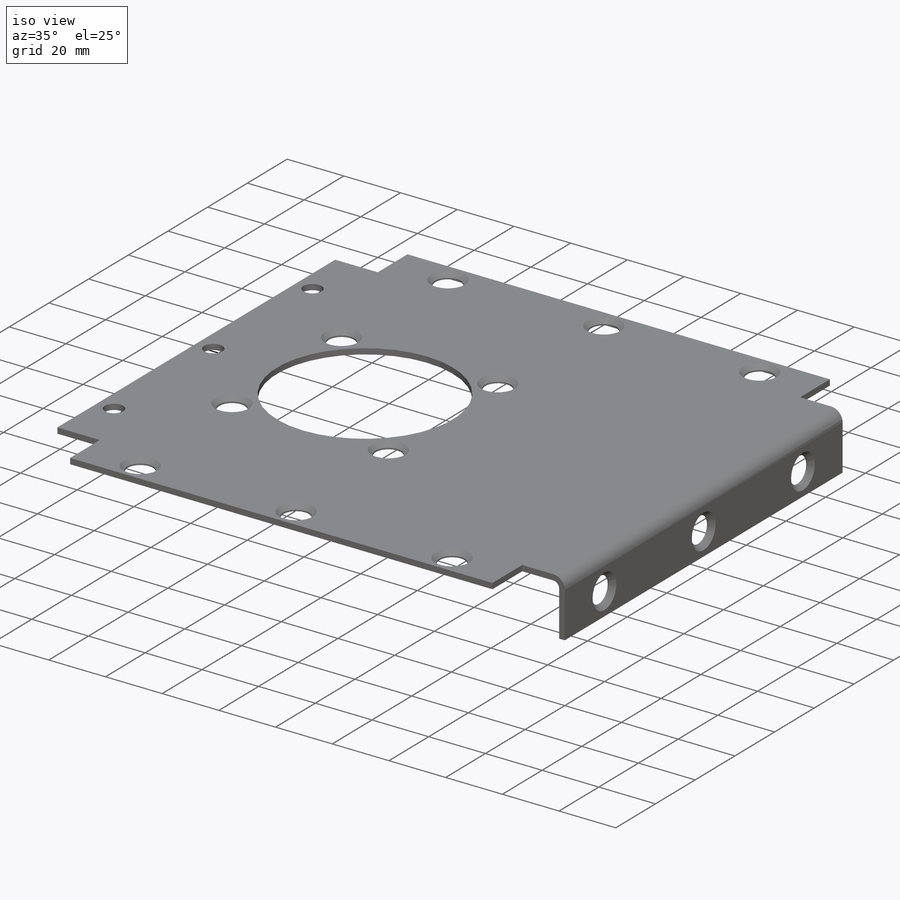
[diagram: iso view]
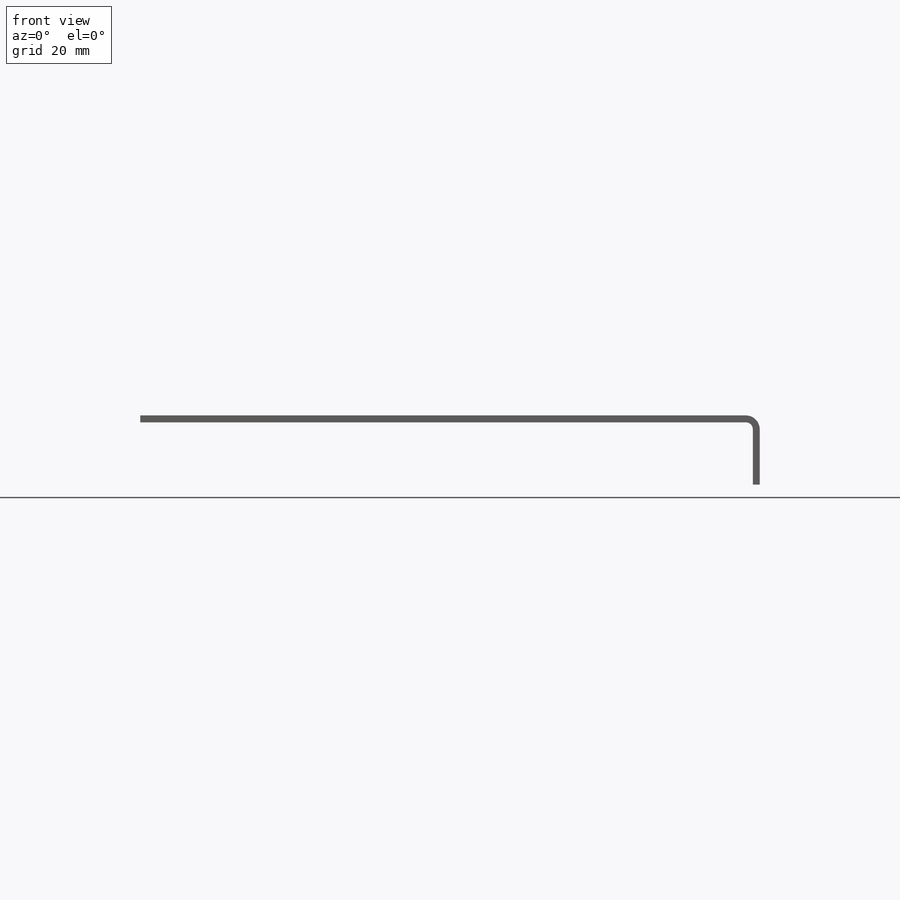
[diagram: front view]
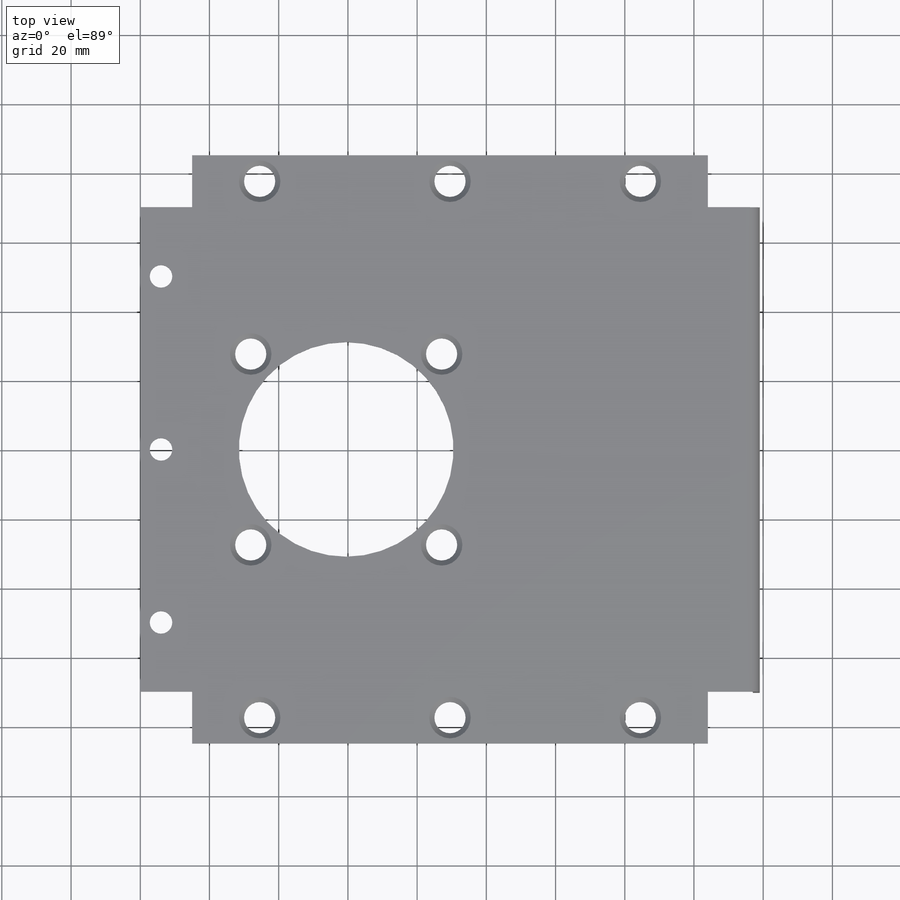
[diagram: top view]
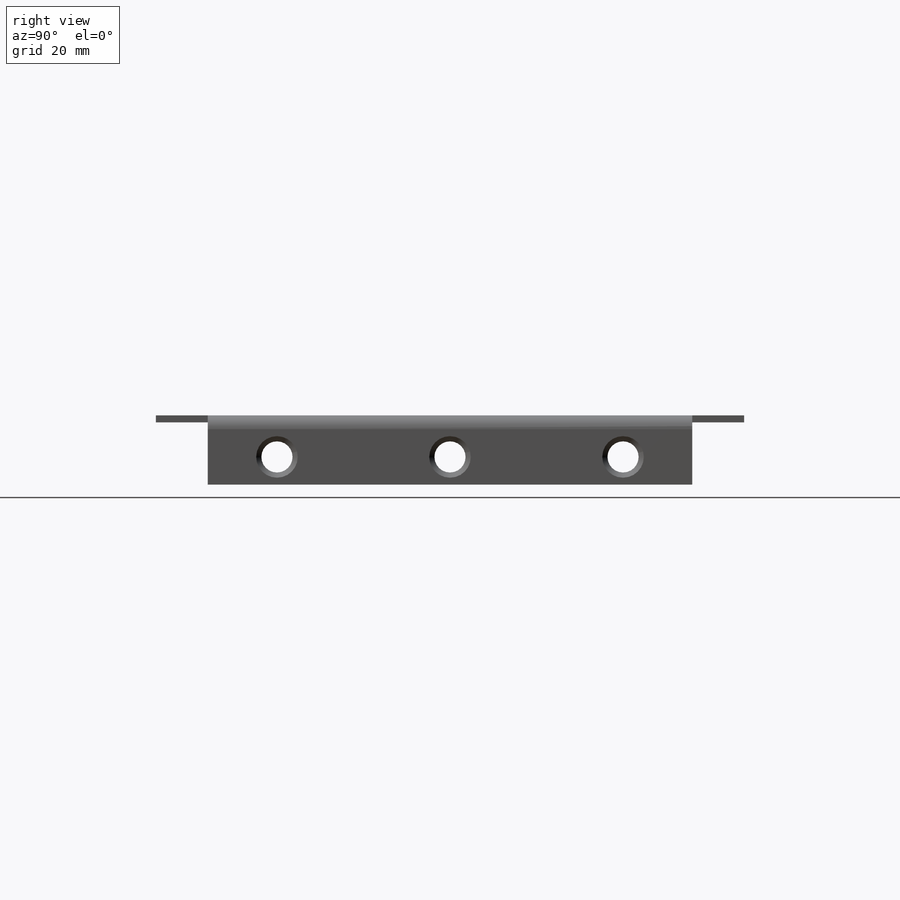
[diagram: right view]
SOLIDWORKS PART (.sldprt)
format: sldprt  version: not decoded by parser v0  size: 282,112 bytes
history: native  units: mm
features: sketch x9, plane x3, sheet_metal_op x2, extrude x2, material x1, cut_extrude x1, hole x1 + 6 further entries (+9 scaffold rows collapsed)
feature tree (34):
  scaffold x9  (default folders/planes/origin — collapsed)
  material  "Ст 3 ГОСТ 380-2005"
  plane  "Спереди"
  plane  "Сверху"
  plane  "Слева"
  "Начало координат"
  "PTricksFreeParameters"
  "PTricksEqu"
  "PTricksFreeParameters"
  sketch  "Эскиз1"  dims[c1.D1=~20.918541mm c2.D1=20.0mm c2.D2=179.0mm]
  sheet_metal_op  "Листовой металл1"  Толщина=2mm
  sheet_metal_op  "Базовая кромка1"
  sketch  "Эскиз3"  dims[D2=78.0mm D3=62.0mm D6=6.5mm D1=59.5mm D4=100.0mm D5=6.0mm]
  cut_extrude  "Вытянуть1"  [1 undecoded]
  sketch  "Эскиз4"  dims[D1=15.0mm D2=15.0mm]
  extrude  "Вытянуть2"  Depth=15mm
  sketch  "Эскиз5"  dims[D1=0.0mm]
  extrude  "Вытянуть3"  Depth=15mm
  sketch  "Эскиз6"  dims[D1=19.5mm D2=55.0mm]
  sketch  "Эскиз7"  dims[D1=100.0mm D2=12.0mm]
  hole  "Зенковка для винта с потайной головкой M61"  [1 undecoded]
  sketch  "Трехмерный эскиз1"
  sketch  "Эскиз8"  dims[hole-wizard template sketch: 54 standard entries collapsed; hole parameters kept: c17.Диаметр сквозного отверстия=9.0mm c17.Глубина сквозного отверстия=2.0mm c17.Диаметр передней зенковки=12.0mm c17.D4=~3.666174mm c17.Угол передней зенковки=90.0deg]
  "Развертка1"
  sketch  "Сгиб-Линии1"
  "Преобразование эскиза1"
decode coverage: 10 of 15 modeling features carry decoded parameters; 6 rows unclassified (native names shown)
note: ~ marks probable driven/reference dimensions
note: 2 parameter values undecoded
note: suppression state not decoded; provenance and decode notes live in map.json
